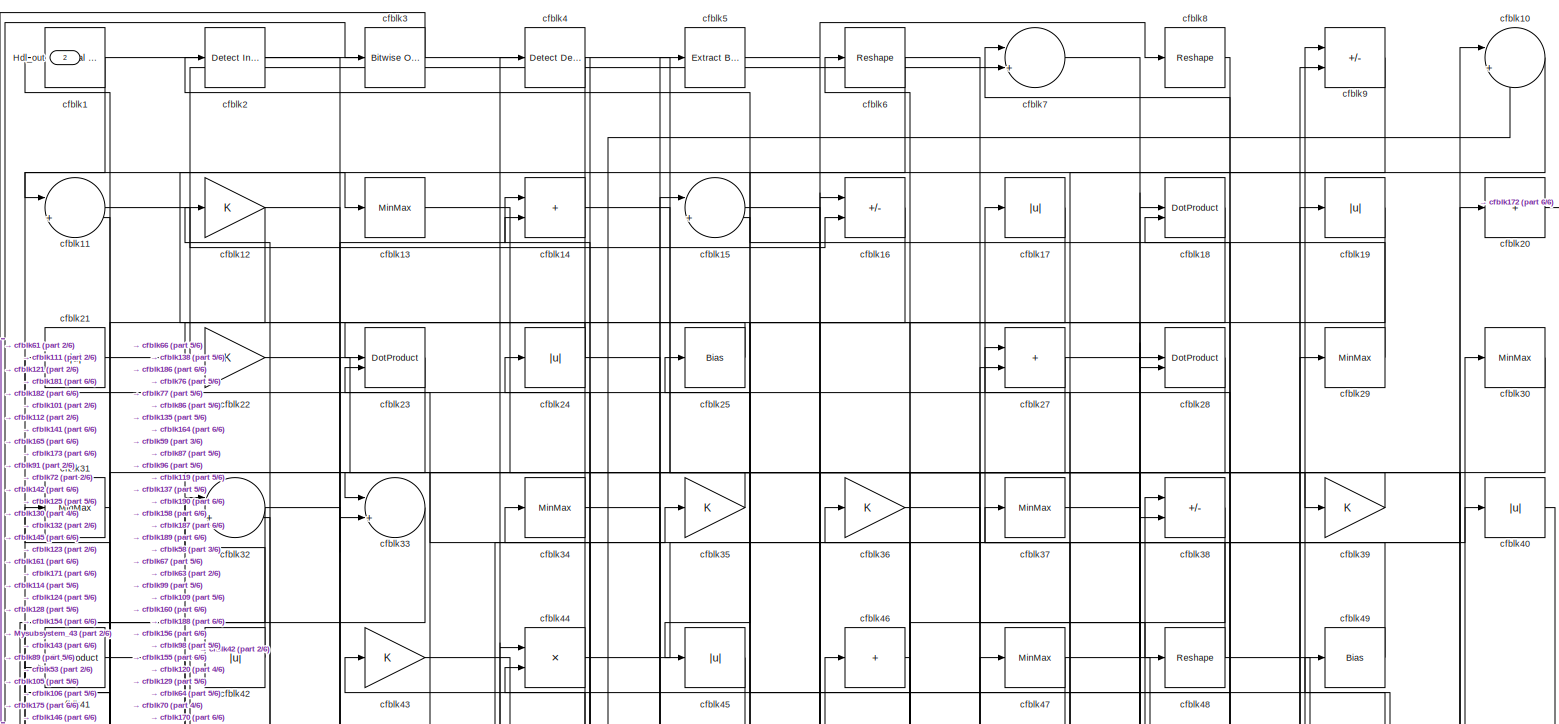
[diagram: root canvas - part 1/6, full width, top band]
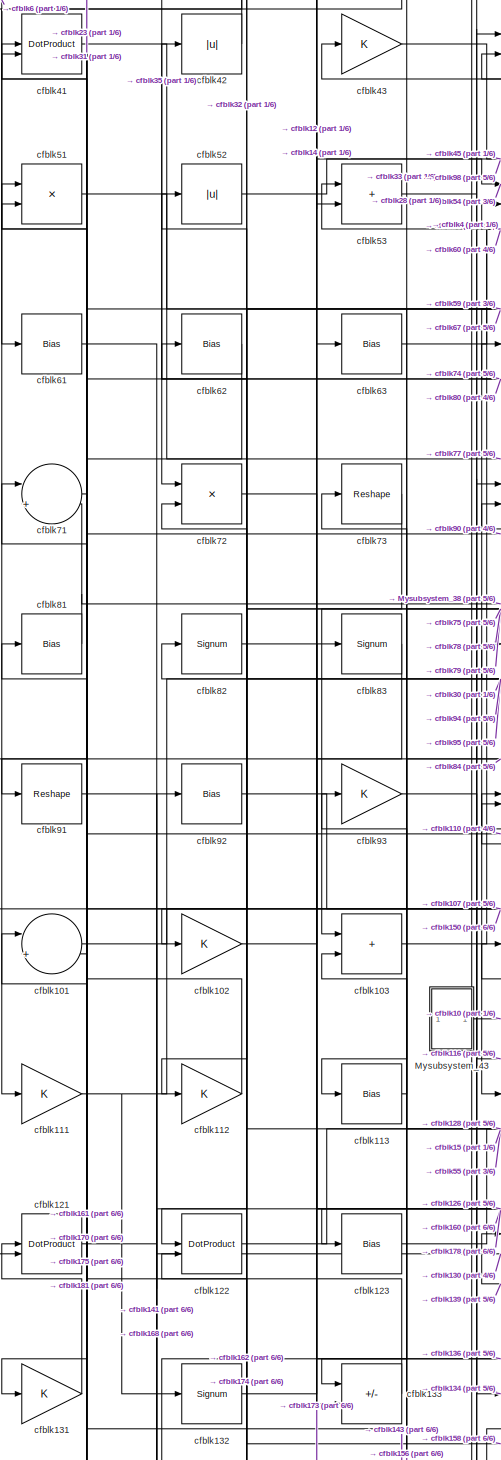
[diagram: root canvas - part 2/6, middle left region]
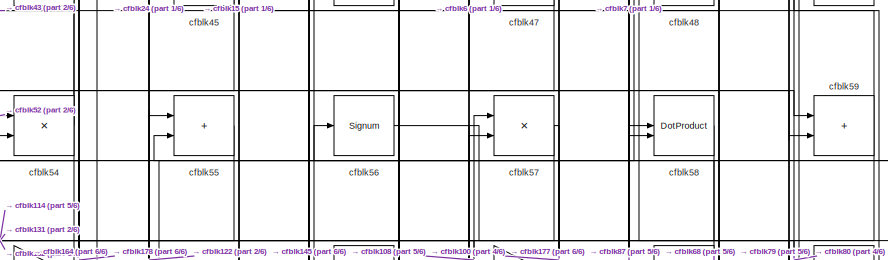
[diagram: root canvas - part 3/6, top center region]
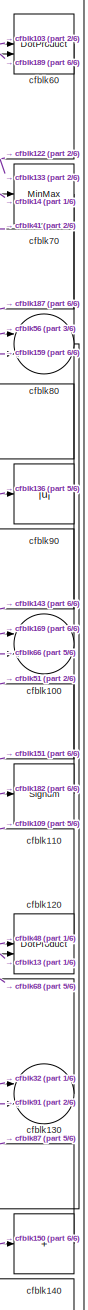
[diagram: root canvas - part 4/6, middle right region]
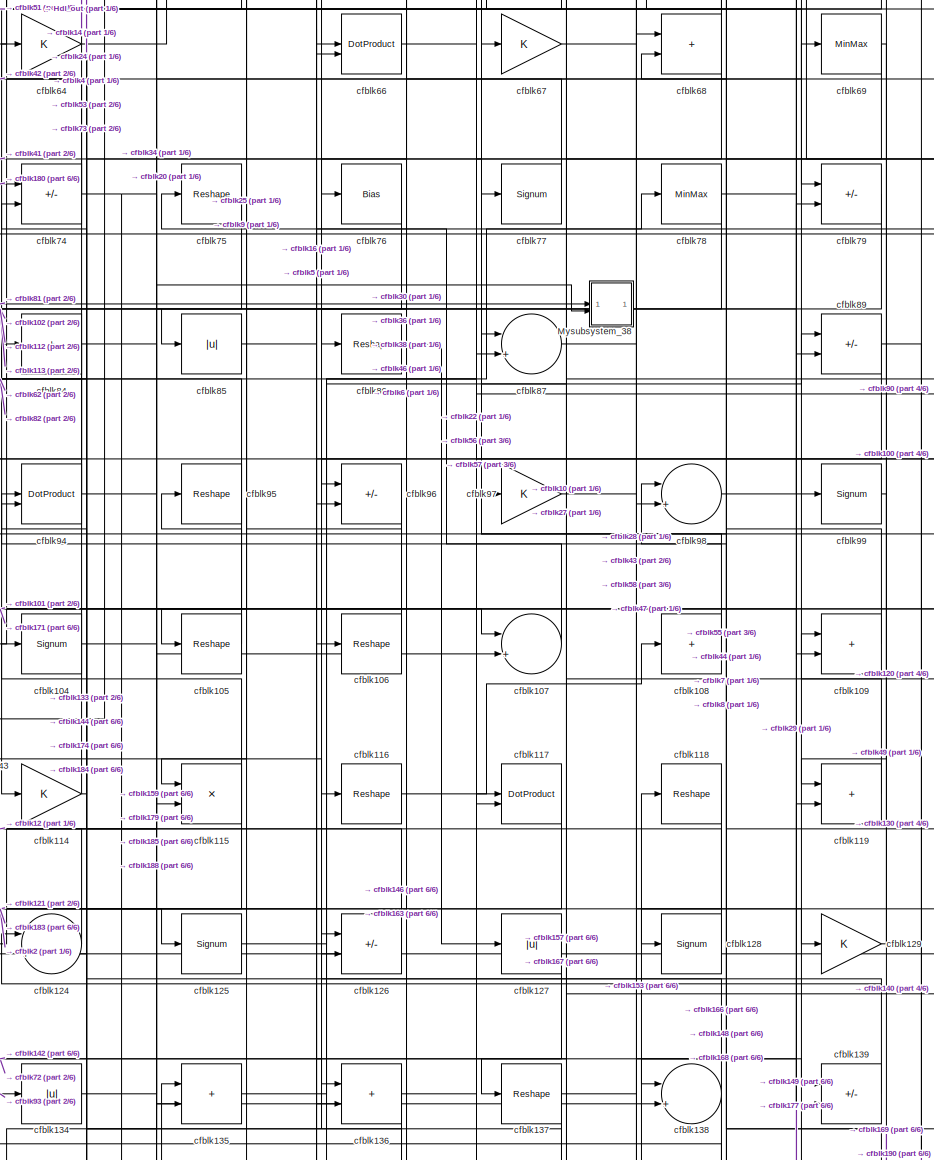
[diagram: root canvas - part 5/6, central region]
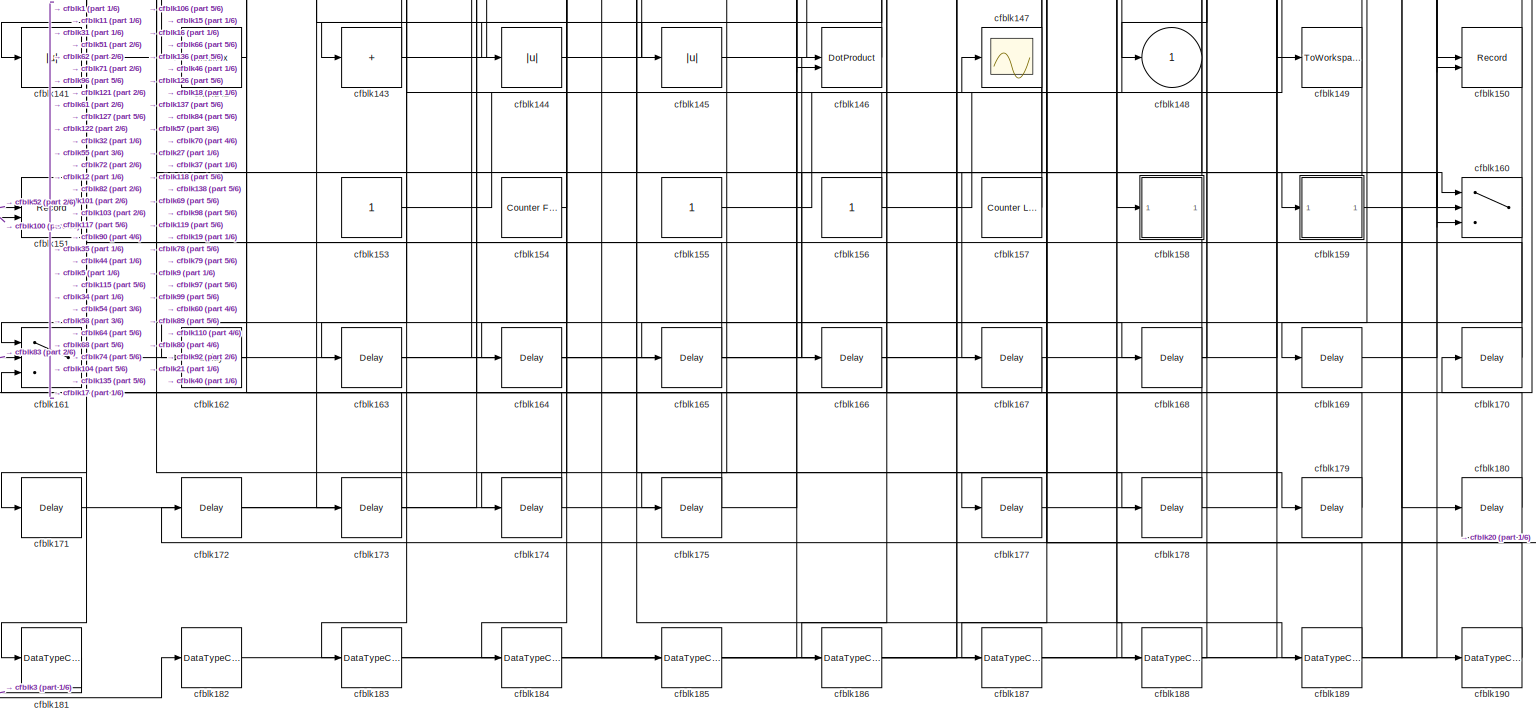
[diagram: root canvas - part 6/6, full width, bottom band]
MODEL slx_7e3a4d47d2c1
KIND model
CONFIG AbsTol = auto
CONFIG EnableMultiTasking = off
CONFIG FixedStep = auto
CONFIG MaxStep = auto
CONFIG MinStep = auto
CONFIG RelTol = 1e-3
CONFIG SampleTimeConstraint = Unconstrained
CONFIG SolverName = VariableStepAuto
CONFIG StartTime = 0.0
CONFIG StopTime = 10.0
BLOCK [Outport] Hdl_out
  OutDataTypeStr = uint8
  Port = 2
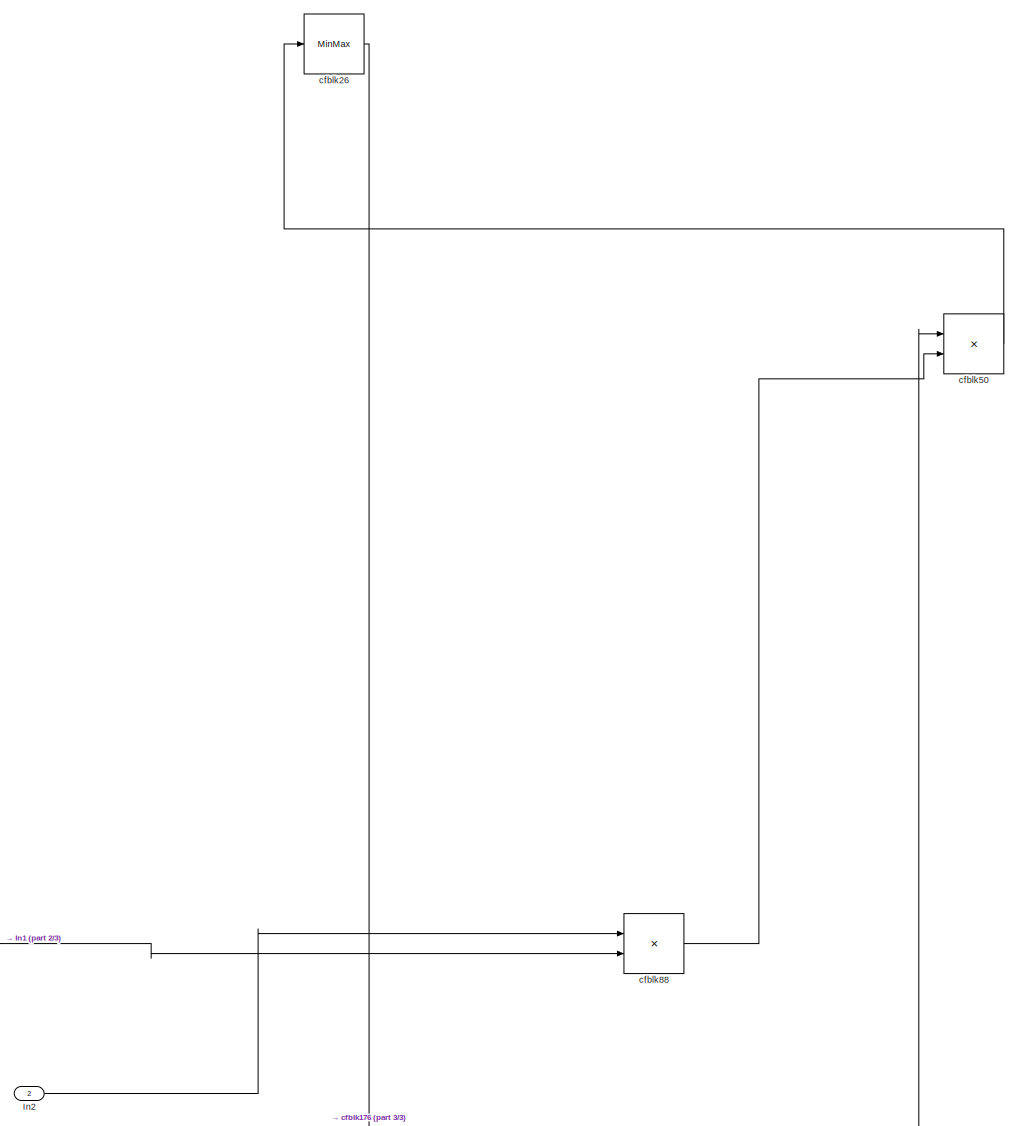
[diagram: Mysubsystem_38 - part 1/3, top center region]
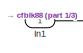
[diagram: Mysubsystem_38 - part 2/3, middle left region]
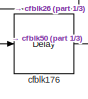
[diagram: Mysubsystem_38 - part 3/3, bottom center region]
BLOCK [SubSystem] Mysubsystem_38
  RTWFcnName = Mysubsystem_38
  RTWFcnNameOpts = User specified
  RTWFileNameOpts = Use function name
  RTWSystemCode = Reusable function
  TreatAsAtomicUnit = on
BLOCK [Inport] Mysubsystem_38/In1
BLOCK [Inport] Mysubsystem_38/In2
  Port = 2
BLOCK [Delay] Mysubsystem_38/cfblk176
  InputPortMap = u0
  SampleTime = 1
BLOCK [MinMax] Mysubsystem_38/cfblk26
BLOCK [Product] Mysubsystem_38/cfblk50
  Inputs = */
  RndMeth = Zero
  SaturateOnIntegerOverflow = on
BLOCK [Product] Mysubsystem_38/cfblk88
  Inputs = */
  RndMeth = Zero
  SaturateOnIntegerOverflow = on
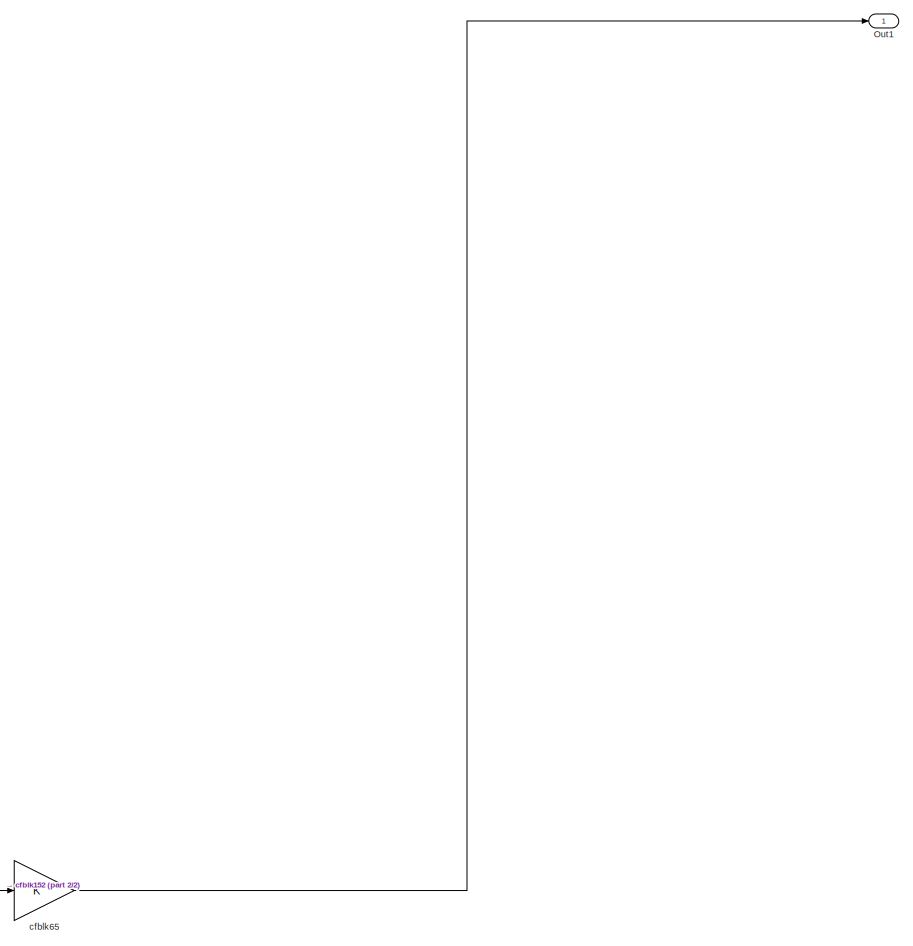
[diagram: Mysubsystem_43 - part 1/2, top right region]
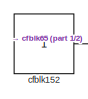
[diagram: Mysubsystem_43 - part 2/2, bottom left region]
BLOCK [SubSystem] Mysubsystem_43
  RTWFcnName = Mysubsystem_43
  RTWFcnNameOpts = User specified
  RTWFileNameOpts = Use function name
  RTWSystemCode = Reusable function
  TreatAsAtomicUnit = on
BLOCK [Outport] Mysubsystem_43/Out1
BLOCK [Constant] Mysubsystem_43/cfblk152
  SampleTime = -1
BLOCK [Gain] Mysubsystem_43/cfblk65
BLOCK [Reference] cfblk1  REF=hdlsllib/Logic and Bit
Operations/Interval Test
  SourceBlock = hdlsllib/Logic and Bit\nOperations/Interval Test
  SourceType = Interval Test
BLOCK [Sum] cfblk10
  Inputs = |++
  OutDataTypeStr = uint8
BLOCK [Sum] cfblk100
  Inputs = |++
  OutDataTypeStr = uint8
BLOCK [Sum] cfblk101
  Inputs = |++
  OutDataTypeStr = uint8
BLOCK [Gain] cfblk102
  OutDataTypeStr = uint8
BLOCK [Sum] cfblk103
  IconShape = rectangular
  OutDataTypeStr = uint8
BLOCK [Signum] cfblk104
BLOCK [Reshape] cfblk105
BLOCK [Reshape] cfblk106
BLOCK [Sum] cfblk107
  Inputs = |++
  OutDataTypeStr = uint8
BLOCK [Sum] cfblk108
  IconShape = rectangular
  Inputs = +
  OutDataTypeStr = uint8
BLOCK [Sum] cfblk109
  IconShape = rectangular
  OutDataTypeStr = uint8
BLOCK [Sum] cfblk11
  Inputs = |++
  OutDataTypeStr = uint8
BLOCK [Signum] cfblk110
BLOCK [Gain] cfblk111
  OutDataTypeStr = uint8
BLOCK [Gain] cfblk112
  OutDataTypeStr = uint8
BLOCK [Bias] cfblk113
  Bias = 0.0
  SaturateOnIntegerOverflow = off
BLOCK [Gain] cfblk114
  OutDataTypeStr = uint8
BLOCK [Product] cfblk115
  Inputs = */
  OutDataTypeStr = uint8
  RndMeth = Zero
  SaturateOnIntegerOverflow = on
BLOCK [Reshape] cfblk116
BLOCK [DotProduct] cfblk117
  OutDataTypeStr = uint8
BLOCK [Reshape] cfblk118
BLOCK [Sum] cfblk119
  IconShape = rectangular
  OutDataTypeStr = uint8
BLOCK [Gain] cfblk12
  OutDataTypeStr = uint8
BLOCK [DotProduct] cfblk120
  OutDataTypeStr = uint8
BLOCK [DotProduct] cfblk121
  OutDataTypeStr = uint8
BLOCK [DotProduct] cfblk122
  OutDataTypeStr = uint8
BLOCK [Bias] cfblk123
  Bias = 0.0
  SaturateOnIntegerOverflow = off
BLOCK [Sum] cfblk124
  Inputs = |++
  OutDataTypeStr = uint8
BLOCK [Signum] cfblk125
BLOCK [Sum] cfblk126
  IconShape = rectangular
  Inputs = +-
  OutDataTypeStr = uint8
BLOCK [Abs] cfblk127
  OutDataTypeStr = uint8
  SaturateOnIntegerOverflow = off
BLOCK [Signum] cfblk128
BLOCK [Gain] cfblk129
  OutDataTypeStr = uint8
BLOCK [MinMax] cfblk13
  OutDataTypeStr = uint8
BLOCK [Sum] cfblk130
  Inputs = |++
  OutDataTypeStr = uint8
BLOCK [Gain] cfblk131
  OutDataTypeStr = uint8
BLOCK [Signum] cfblk132
BLOCK [Sum] cfblk133
  IconShape = rectangular
  Inputs = +-
  OutDataTypeStr = uint8
BLOCK [Abs] cfblk134
  OutDataTypeStr = uint8
  SaturateOnIntegerOverflow = off
BLOCK [Sum] cfblk135
  IconShape = rectangular
  OutDataTypeStr = uint8
BLOCK [Sum] cfblk136
  IconShape = rectangular
  OutDataTypeStr = uint8
BLOCK [Reshape] cfblk137
BLOCK [Sum] cfblk138
  Inputs = |++
  OutDataTypeStr = uint8
BLOCK [Sum] cfblk139
  IconShape = rectangular
  Inputs = +-
  OutDataTypeStr = uint8
BLOCK [Sum] cfblk14
  IconShape = rectangular
  OutDataTypeStr = uint8
BLOCK [Sum] cfblk140
  IconShape = rectangular
  Inputs = +
  OutDataTypeStr = uint8
BLOCK [Abs] cfblk141
  OutDataTypeStr = uint8
  SaturateOnIntegerOverflow = off
BLOCK [MinMax] cfblk142
  OutDataTypeStr = uint8
BLOCK [Sum] cfblk143
  IconShape = rectangular
  Inputs = +
  OutDataTypeStr = uint8
BLOCK [Abs] cfblk144
  OutDataTypeStr = uint8
  SaturateOnIntegerOverflow = off
BLOCK [Abs] cfblk145
  OutDataTypeStr = uint8
  SaturateOnIntegerOverflow = off
BLOCK [DotProduct] cfblk146
  OutDataTypeStr = uint8
BLOCK [Scope] cfblk147
  Floating = off
  NumInputPorts = 1
  ScopeSpecificationString = Simulink.scopes.TimeScopeBlockCfg('CurrentConfiguration', extmgr.ConfigurationSet(extmgr.Configuration('Core','General UI',true),extmgr.Configuration('Core','Source UI',true),extmgr.Configuration('Sources','WiredSimulink',true,'DataLoggingVariableName','ScopeData2','DataLoggingSaveFormat','Array','DataLoggingLimitDataPoints',true,'DataLoggingDecimation','1'),extmgr.Configuration('Visuals','Time Do...<+868ch>
BLOCK [Outport] cfblk148
  OutDataTypeStr = uint8
  VectorParamsAs1DForOutWhenUnconnected = off
BLOCK [ToWorkspace] cfblk149
  MaxDataPoints = inf
  SampleTime = -1
  SaveFormat = Timeseries
  VariableName = simout
BLOCK [Sum] cfblk15
  Inputs = |++
  OutDataTypeStr = uint8
BLOCK [Record] cfblk150
  CompatibilityTag = XY
  FileSettingsInternal = {"entries":[{"content":{"excelSettings":{"content":{},"type":"Streamout.ExcelSettings"}},"type":"Streamout.FileSettingStorage","uuid":""}],"packageUris":["http:\/\/schema.mathworks.com\/mf0\/streamout_blocks\/R2020a"],"version":"1.0"}
  Layout = [1 1]
  SignalsInternal = {"entries":[{"content":{"signals":[{"content":{"blockPath":[],"dimensions":[1],"domain":"","lineColor":"#a2142f","plots":[1],"port":1,"signalID":37299,"signalName":"cfblk92"},"type":"RecordBlkView.Signal","uuid":""},{"content":{"blockPath":[],"dimensions":[1],"domain":"","lineColor":"#139fff","plots":[1],"port":2,"signalID":37302,"signalName":"cfblk80"},"type":"RecordBlkView.Signal","uuid":""}]},"...<+142ch>
  VisualizationBindings = {"xyplotplugin":{"info":[{"series":[{"bindingParametersList":[{"parameter":"X-Axis","signalID":37299,"signalName":"cfblk92"},{"parameter":"Y-Axis","signalID":37302,"signalName":"cfblk80"}],"seriesID":8250}],"subplotID":1}]}}
  st = -1
BLOCK [Record] cfblk151
  CompatibilityTag = XY
  FileSettingsInternal = {"entries":[{"content":{"excelSettings":{"content":{},"type":"Streamout.ExcelSettings"}},"type":"Streamout.FileSettingStorage","uuid":""}],"packageUris":["http:\/\/schema.mathworks.com\/mf0\/streamout_blocks\/R2020a"],"version":"1.0"}
  Layout = [1 1]
  SignalsInternal = {"entries":[{"content":{"signals":[{"content":{"blockPath":[],"dimensions":[1],"domain":"","lineColor":"#a2142f","plots":[1],"port":1,"signalID":37291,"signalName":"cfblk158"},"type":"RecordBlkView.Signal","uuid":""},{"content":{"blockPath":[],"dimensions":[1],"domain":"","lineColor":"#139fff","plots":[1],"port":2,"signalID":37294,"signalName":"cfblk100"},"type":"RecordBlkView.Signal","uuid":""}]}...<+144ch>
  VisualizationBindings = {"xyplotplugin":{"info":[{"series":[{"bindingParametersList":[{"parameter":"X-Axis","signalID":37291,"signalName":"cfblk158"},{"parameter":"Y-Axis","signalID":37294,"signalName":"cfblk100"}],"seriesID":43053}],"subplotID":1}]}}
  st = -1
BLOCK [Constant] cfblk153
  OutDataTypeStr = uint8
  SampleTime = -1
BLOCK [Reference] cfblk154  REF=hdlsllib/Sources/Counter
Free-Running
  SourceBlock = hdlsllib/Sources/Counter\nFree-Running
  SourceType = Counter Free-Running
BLOCK [Constant] cfblk155
  OutDataTypeStr = uint8
  SampleTime = -1
BLOCK [Constant] cfblk156
  OutDataTypeStr = uint8
  SampleTime = -1
BLOCK [Reference] cfblk157  REF=hdlsllib/Sources/Counter
Limited
  SourceBlock = hdlsllib/Sources/Counter\nLimited
  SourceType = Counter Limited
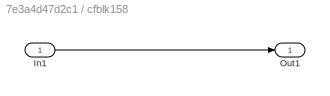
BLOCK [SubSystem] cfblk158
  LibrarySourceBlock = hdlsllib/Ports &\nSubsystems/Subsystem
BLOCK [Inport] cfblk158/In1
BLOCK [Outport] cfblk158/Out1
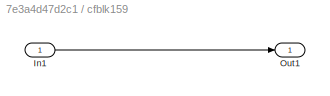
BLOCK [SubSystem] cfblk159
  LibrarySourceBlock = hdlsllib/Ports &\nSubsystems/Subsystem
BLOCK [Inport] cfblk159/In1
BLOCK [Outport] cfblk159/Out1
BLOCK [Sum] cfblk16
  IconShape = rectangular
  Inputs = +-
  OutDataTypeStr = uint8
BLOCK [Switch] cfblk160
  InputSameDT = off
  OutDataTypeStr = uint8
  SaturateOnIntegerOverflow = off
BLOCK [Switch] cfblk161
  InputSameDT = off
  OutDataTypeStr = uint8
  SaturateOnIntegerOverflow = off
BLOCK [Delay] cfblk162
  InputPortMap = u0
  SampleTime = 1
BLOCK [Delay] cfblk163
  InputPortMap = u0
  SampleTime = 1
BLOCK [Delay] cfblk164
  InputPortMap = u0
  SampleTime = 1
BLOCK [Delay] cfblk165
  InputPortMap = u0
  SampleTime = 1
BLOCK [Delay] cfblk166
  InputPortMap = u0
  SampleTime = 1
BLOCK [Delay] cfblk167
  InputPortMap = u0
  SampleTime = 1
BLOCK [Delay] cfblk168
  InputPortMap = u0
  SampleTime = 1
BLOCK [Delay] cfblk169
  InputPortMap = u0
  SampleTime = 1
BLOCK [Abs] cfblk17
  OutDataTypeStr = uint8
  SaturateOnIntegerOverflow = off
BLOCK [Delay] cfblk170
  InputPortMap = u0
  SampleTime = 1
BLOCK [Delay] cfblk171
  InputPortMap = u0
  SampleTime = 1
BLOCK [Delay] cfblk172
  InputPortMap = u0
  SampleTime = 1
BLOCK [Delay] cfblk173
  InputPortMap = u0
  SampleTime = 1
BLOCK [Delay] cfblk174
  InputPortMap = u0
  SampleTime = 1
BLOCK [Delay] cfblk175
  InputPortMap = u0
  SampleTime = 1
BLOCK [Delay] cfblk177
  InputPortMap = u0
  SampleTime = 1
BLOCK [Delay] cfblk178
  InputPortMap = u0
  SampleTime = 1
BLOCK [Delay] cfblk179
  InputPortMap = u0
  SampleTime = 1
BLOCK [DotProduct] cfblk18
  OutDataTypeStr = uint8
BLOCK [Delay] cfblk180
  InputPortMap = u0
  SampleTime = 1
BLOCK [DataTypeConversion] cfblk181
  OutDataTypeStr = uint8
  RndMeth = Floor
  SaturateOnIntegerOverflow = off
BLOCK [DataTypeConversion] cfblk182
  OutDataTypeStr = uint8
  RndMeth = Floor
  SaturateOnIntegerOverflow = off
BLOCK [DataTypeConversion] cfblk183
  OutDataTypeStr = uint8
  RndMeth = Floor
  SaturateOnIntegerOverflow = off
BLOCK [DataTypeConversion] cfblk184
  OutDataTypeStr = uint8
  RndMeth = Floor
  SaturateOnIntegerOverflow = off
BLOCK [DataTypeConversion] cfblk185
  OutDataTypeStr = uint8
  RndMeth = Floor
  SaturateOnIntegerOverflow = off
BLOCK [DataTypeConversion] cfblk186
  OutDataTypeStr = uint8
  RndMeth = Floor
  SaturateOnIntegerOverflow = off
BLOCK [DataTypeConversion] cfblk187
  OutDataTypeStr = uint8
  RndMeth = Floor
  SaturateOnIntegerOverflow = off
BLOCK [DataTypeConversion] cfblk188
  OutDataTypeStr = uint8
  RndMeth = Floor
  SaturateOnIntegerOverflow = off
BLOCK [DataTypeConversion] cfblk189
  OutDataTypeStr = uint8
  RndMeth = Floor
  SaturateOnIntegerOverflow = off
BLOCK [Abs] cfblk19
  OutDataTypeStr = uint8
  SaturateOnIntegerOverflow = off
BLOCK [DataTypeConversion] cfblk190
  OutDataTypeStr = uint8
  RndMeth = Floor
  SaturateOnIntegerOverflow = off
BLOCK [Reference] cfblk2  REF=simulink/Logic and Bit
Operations/Detect
Increase
  LibrarySourceBlock = hdlsllib/Logic and Bit\nOperations/Detect\nIncrease
  SourceBlock = simulink/Logic and Bit\nOperations/Detect\nIncrease
  SourceType = Detect Increase
BLOCK [Sum] cfblk20
  IconShape = rectangular
  Inputs = +
  OutDataTypeStr = uint8
BLOCK [Abs] cfblk21
  OutDataTypeStr = uint8
  SaturateOnIntegerOverflow = off
BLOCK [Gain] cfblk22
  OutDataTypeStr = uint8
BLOCK [DotProduct] cfblk23
  OutDataTypeStr = uint8
BLOCK [Abs] cfblk24
  OutDataTypeStr = uint8
  SaturateOnIntegerOverflow = off
BLOCK [Bias] cfblk25
  Bias = 0.0
  SaturateOnIntegerOverflow = off
BLOCK [Sum] cfblk27
  IconShape = rectangular
  OutDataTypeStr = uint8
BLOCK [DotProduct] cfblk28
  OutDataTypeStr = uint8
BLOCK [MinMax] cfblk29
  OutDataTypeStr = uint8
BLOCK [Reference] cfblk3  REF=simulink/Logic and Bit
Operations/Bitwise
Operator
  LibrarySourceBlock = hdlsllib/Logic and Bit\nOperations/Bitwise\nOperator
  SourceBlock = simulink/Logic and Bit\nOperations/Bitwise\nOperator
  SourceType = Bitwise Operator
BLOCK [MinMax] cfblk30
  OutDataTypeStr = uint8
BLOCK [MinMax] cfblk31
  OutDataTypeStr = uint8
BLOCK [Sum] cfblk32
  Inputs = |++
  OutDataTypeStr = uint8
BLOCK [Sum] cfblk33
  Inputs = |++
  OutDataTypeStr = uint8
BLOCK [MinMax] cfblk34
  OutDataTypeStr = uint8
BLOCK [Gain] cfblk35
  OutDataTypeStr = uint8
BLOCK [Gain] cfblk36
  OutDataTypeStr = uint8
BLOCK [MinMax] cfblk37
  OutDataTypeStr = uint8
BLOCK [Sum] cfblk38
  IconShape = rectangular
  Inputs = +-
  OutDataTypeStr = uint8
BLOCK [Gain] cfblk39
  OutDataTypeStr = uint8
BLOCK [Reference] cfblk4  REF=simulink/Logic and Bit
Operations/Detect
Decrease
  LibrarySourceBlock = hdlsllib/Logic and Bit\nOperations/Detect\nDecrease
  SourceBlock = simulink/Logic and Bit\nOperations/Detect\nDecrease
  SourceType = Detect Decrease
BLOCK [Abs] cfblk40
  OutDataTypeStr = uint8
  SaturateOnIntegerOverflow = off
BLOCK [DotProduct] cfblk41
  OutDataTypeStr = uint8
BLOCK [Abs] cfblk42
  OutDataTypeStr = uint8
  SaturateOnIntegerOverflow = off
BLOCK [Gain] cfblk43
  OutDataTypeStr = uint8
BLOCK [Product] cfblk44
  Inputs = */
  OutDataTypeStr = uint8
  RndMeth = Zero
  SaturateOnIntegerOverflow = on
BLOCK [Abs] cfblk45
  OutDataTypeStr = uint8
  SaturateOnIntegerOverflow = off
BLOCK [Sum] cfblk46
  IconShape = rectangular
  Inputs = +
  OutDataTypeStr = uint8
BLOCK [MinMax] cfblk47
  OutDataTypeStr = uint8
BLOCK [Reshape] cfblk48
BLOCK [Bias] cfblk49
  Bias = 0.0
  SaturateOnIntegerOverflow = off
BLOCK [Reference] cfblk5  REF=simulink/Logic and Bit
Operations/Extract Bits
  LibrarySourceBlock = hdlsllib/Logic and Bit\nOperations/Extract Bits
  SourceBlock = simulink/Logic and Bit\nOperations/Extract Bits
  SourceType = Extract Bits
BLOCK [Product] cfblk51
  Inputs = */
  OutDataTypeStr = uint8
  RndMeth = Zero
  SaturateOnIntegerOverflow = on
BLOCK [Abs] cfblk52
  OutDataTypeStr = uint8
  SaturateOnIntegerOverflow = off
BLOCK [Sum] cfblk53
  IconShape = rectangular
  OutDataTypeStr = uint8
BLOCK [Product] cfblk54
  Inputs = */
  OutDataTypeStr = uint8
  RndMeth = Zero
  SaturateOnIntegerOverflow = on
BLOCK [Sum] cfblk55
  IconShape = rectangular
  OutDataTypeStr = uint8
BLOCK [Signum] cfblk56
BLOCK [Product] cfblk57
  Inputs = */
  OutDataTypeStr = uint8
  RndMeth = Zero
  SaturateOnIntegerOverflow = on
BLOCK [DotProduct] cfblk58
  OutDataTypeStr = uint8
BLOCK [Sum] cfblk59
  IconShape = rectangular
  OutDataTypeStr = uint8
BLOCK [Reshape] cfblk6
BLOCK [DotProduct] cfblk60
  OutDataTypeStr = uint8
BLOCK [Bias] cfblk61
  Bias = 0.0
  SaturateOnIntegerOverflow = off
BLOCK [Bias] cfblk62
  Bias = 0.0
  SaturateOnIntegerOverflow = off
BLOCK [Bias] cfblk63
  Bias = 0.0
  SaturateOnIntegerOverflow = off
BLOCK [Gain] cfblk64
  OutDataTypeStr = uint8
BLOCK [DotProduct] cfblk66
  OutDataTypeStr = uint8
BLOCK [Gain] cfblk67
  OutDataTypeStr = uint8
BLOCK [Sum] cfblk68
  IconShape = rectangular
  OutDataTypeStr = uint8
BLOCK [MinMax] cfblk69
  OutDataTypeStr = uint8
BLOCK [Sum] cfblk7
  Inputs = |++
  OutDataTypeStr = uint8
BLOCK [MinMax] cfblk70
  OutDataTypeStr = uint8
BLOCK [Sum] cfblk71
  Inputs = |++
  OutDataTypeStr = uint8
BLOCK [Product] cfblk72
  Inputs = */
  OutDataTypeStr = uint8
  RndMeth = Zero
  SaturateOnIntegerOverflow = on
BLOCK [Reshape] cfblk73
BLOCK [Sum] cfblk74
  IconShape = rectangular
  Inputs = +-
  OutDataTypeStr = uint8
BLOCK [Reshape] cfblk75
BLOCK [Bias] cfblk76
  Bias = 0.0
  SaturateOnIntegerOverflow = off
BLOCK [Signum] cfblk77
BLOCK [MinMax] cfblk78
  OutDataTypeStr = uint8
BLOCK [Sum] cfblk79
  IconShape = rectangular
  Inputs = +-
  OutDataTypeStr = uint8
BLOCK [Reshape] cfblk8
BLOCK [Sum] cfblk80
  Inputs = |++
  OutDataTypeStr = uint8
BLOCK [Bias] cfblk81
  Bias = 0.0
  SaturateOnIntegerOverflow = off
BLOCK [Signum] cfblk82
BLOCK [Signum] cfblk83
BLOCK [Sum] cfblk84
  IconShape = rectangular
  Inputs = +
  OutDataTypeStr = uint8
BLOCK [Abs] cfblk85
  OutDataTypeStr = uint8
  SaturateOnIntegerOverflow = off
BLOCK [Reshape] cfblk86
BLOCK [Sum] cfblk87
  Inputs = |++
  OutDataTypeStr = uint8
BLOCK [Sum] cfblk89
  IconShape = rectangular
  Inputs = +-
  OutDataTypeStr = uint8
BLOCK [Sum] cfblk9
  IconShape = rectangular
  Inputs = +-
  OutDataTypeStr = uint8
BLOCK [Abs] cfblk90
  OutDataTypeStr = uint8
  SaturateOnIntegerOverflow = off
BLOCK [Reshape] cfblk91
BLOCK [Bias] cfblk92
  Bias = 0.0
  SaturateOnIntegerOverflow = off
BLOCK [Gain] cfblk93
  OutDataTypeStr = uint8
BLOCK [DotProduct] cfblk94
  OutDataTypeStr = uint8
BLOCK [Reshape] cfblk95
BLOCK [Sum] cfblk96
  IconShape = rectangular
  Inputs = +-
  OutDataTypeStr = uint8
BLOCK [Gain] cfblk97
  OutDataTypeStr = uint8
BLOCK [Sum] cfblk98
  Inputs = |++
  OutDataTypeStr = uint8
BLOCK [Signum] cfblk99
LINE Mysubsystem_38/In1:1 -> Mysubsystem_38/cfblk88:2
LINE Mysubsystem_38/In2:1 -> Mysubsystem_38/cfblk88:1
LINE Mysubsystem_38/cfblk176:1 -> Mysubsystem_38/cfblk50:1
LINE Mysubsystem_38/cfblk26:1 -> Mysubsystem_38/cfblk176:1
LINE Mysubsystem_38/cfblk50:1 -> Mysubsystem_38/cfblk26:1
LINE Mysubsystem_38/cfblk88:1 -> Mysubsystem_38/cfblk50:2
LINE Mysubsystem_43/cfblk152:1 -> Mysubsystem_43/cfblk65:1
LINE Mysubsystem_43/cfblk65:1 -> Mysubsystem_43/Out1:1
LINE Mysubsystem_43:1 -> cfblk10:2
NET cfblk100:1 -> cfblk151:2, cfblk56:1
NET cfblk101:1 -> cfblk107:1, cfblk160:3
LINE cfblk102:1 -> cfblk83:1
LINE cfblk103:1 -> cfblk60:1
NET cfblk104:1 -> cfblk107:2, cfblk179:1
LINE cfblk105:1 -> cfblk95:1
LINE cfblk106:1 -> cfblk25:1
LINE cfblk107:1 -> cfblk75:1
NET cfblk108:1 -> cfblk57:1, cfblk94:1
NET cfblk109:1 -> cfblk44:2, cfblk7:1
LINE cfblk10:1 -> cfblk137:1
LINE cfblk110:1 -> cfblk51:1
NET cfblk111:1 -> cfblk132:1, cfblk30:1
LINE cfblk112:1 -> cfblk31:1
LINE cfblk113:1 -> cfblk93:1
NET cfblk114:1 -> Hdl_out:1, cfblk14:1
NET cfblk115:1 -> cfblk135:2, cfblk174:1, cfblk94:2
LINE cfblk116:1 -> cfblk108:1
LINE cfblk117:1 -> cfblk183:1
LINE cfblk118:1 -> cfblk128:1
LINE cfblk119:1 -> cfblk27:1
NET cfblk11:1 -> cfblk13:1, cfblk16:2, cfblk28:2
LINE cfblk120:1 -> cfblk109:1
NET cfblk121:1 -> cfblk126:1, cfblk160:2, cfblk178:1
LINE cfblk122:1 -> cfblk55:1
LINE cfblk123:1 -> cfblk15:1
LINE cfblk124:1 -> cfblk12:1
LINE cfblk125:1 -> cfblk89:1
LINE cfblk126:1 -> cfblk104:1
LINE cfblk127:1 -> cfblk142:1
NET cfblk128:1 -> cfblk24:1, cfblk73:1
LINE cfblk129:1 -> cfblk49:1
NET cfblk12:1 -> cfblk145:1, cfblk91:1
LINE cfblk130:1 -> cfblk68:2
LINE cfblk131:1 -> cfblk121:1
NET cfblk132:1 -> cfblk14:2, cfblk63:1
LINE cfblk133:1 -> cfblk81:1
LINE cfblk134:1 -> cfblk69:1
LINE cfblk135:1 -> cfblk47:1
NET cfblk136:1 -> cfblk163:1, cfblk90:1
NET cfblk137:1 -> cfblk139:2, cfblk167:1
NET cfblk138:1 -> cfblk166:1, cfblk36:1
NET cfblk139:1 -> cfblk124:1, cfblk53:1
LINE cfblk13:1 -> cfblk120:2
LINE cfblk140:1 -> cfblk87:1
LINE cfblk141:1 -> cfblk92:1
LINE cfblk142:1 -> cfblk32:2
NET cfblk143:1 -> cfblk101:1, cfblk5:1
NET cfblk144:1 -> cfblk135:1, cfblk64:1
LINE cfblk145:1 -> cfblk57:2
NET cfblk146:1 -> cfblk46:1, cfblk74:2
LINE cfblk14:1 -> cfblk70:1
LINE cfblk153:1 -> cfblk118:1
LINE cfblk154:1 -> cfblk34:1
LINE cfblk155:1 -> cfblk9:1
NET cfblk156:1 -> cfblk103:2, cfblk19:1
LINE cfblk157:1 -> cfblk84:1
LINE cfblk158/In1:1 -> cfblk158/Out1:1
NET cfblk158:1 -> cfblk151:1, cfblk52:1
LINE cfblk159/In1:1 -> cfblk159/Out1:1
NET cfblk159:1 -> cfblk180:1, cfblk80:2, cfblk97:1
LINE cfblk15:1 -> cfblk160:1
NET cfblk160:1 -> cfblk165:1, cfblk21:1
NET cfblk161:1 -> cfblk146:1, cfblk35:1
LINE cfblk162:1 -> cfblk122:2
LINE cfblk163:1 -> cfblk66:1
LINE cfblk164:1 -> cfblk27:2
LINE cfblk165:1 -> cfblk11:2
LINE cfblk166:1 -> cfblk79:2
LINE cfblk167:1 -> cfblk161:3
LINE cfblk168:1 -> cfblk98:1
LINE cfblk169:1 -> cfblk100:1
LINE cfblk16:1 -> cfblk66:2
LINE cfblk170:1 -> cfblk71:1
LINE cfblk171:1 -> cfblk44:1
LINE cfblk172:1 -> cfblk16:1
LINE cfblk173:1 -> cfblk1:1
LINE cfblk174:1 -> cfblk72:2
LINE cfblk175:1 -> cfblk51:2
LINE cfblk177:1 -> cfblk119:2
LINE cfblk178:1 -> cfblk54:2
LINE cfblk179:1 -> cfblk126:2
LINE cfblk17:1 -> cfblk175:1
LINE cfblk180:1 -> cfblk74:1
LINE cfblk181:1 -> cfblk3:1
LINE cfblk182:1 -> cfblk110:1
LINE cfblk183:1 -> cfblk106:1
LINE cfblk184:1 -> cfblk117:1
LINE cfblk185:1 -> cfblk117:2
LINE cfblk186:1 -> cfblk9:2
LINE cfblk187:1 -> cfblk18:1
LINE cfblk188:1 -> cfblk18:2
NET cfblk189:1 -> cfblk147:1, cfblk60:2
LINE cfblk18:1 -> cfblk186:1
LINE cfblk190:1 -> cfblk37:1
LINE cfblk19:1 -> cfblk45:1
LINE cfblk1:1 -> cfblk11:1
LINE cfblk20:1 -> cfblk172:1
LINE cfblk21:1 -> cfblk7:2
NET cfblk22:1 -> cfblk33:2, cfblk87:2
LINE cfblk23:1 -> cfblk101:2
NET cfblk24:1 -> cfblk138:2, cfblk23:1, cfblk59:1
LINE cfblk25:1 -> cfblk22:1
NET cfblk27:1 -> cfblk146:2, cfblk158:1
LINE cfblk28:1 -> cfblk123:1
LINE cfblk29:1 -> cfblk2:1
LINE cfblk2:1 -> cfblk125:1
LINE cfblk30:1 -> cfblk96:1
LINE cfblk31:1 -> cfblk141:1
NET cfblk32:1 -> cfblk121:2, cfblk130:1
LINE cfblk33:1 -> cfblk61:1
LINE cfblk34:1 -> cfblk89:2
LINE cfblk35:1 -> cfblk72:1
LINE cfblk36:1 -> cfblk48:1
LINE cfblk37:1 -> cfblk189:1
LINE cfblk38:1 -> cfblk76:1
LINE cfblk39:1 -> cfblk33:1
LINE cfblk3:1 -> cfblk182:1
LINE cfblk40:1 -> cfblk170:1
LINE cfblk41:1 -> cfblk77:1
LINE cfblk42:1 -> cfblk32:1
LINE cfblk43:1 -> cfblk98:2
LINE cfblk44:1 -> cfblk10:1
LINE cfblk45:1 -> cfblk53:2
LINE cfblk46:1 -> cfblk86:1
NET cfblk47:1 -> cfblk40:1, cfblk96:2, cfblk99:1
NET cfblk48:1 -> cfblk120:1, cfblk23:2
LINE cfblk49:1 -> cfblk17:1
NET cfblk4:1 -> cfblk124:2, cfblk39:1
LINE cfblk51:1 -> cfblk67:1
LINE cfblk52:1 -> cfblk54:1
NET cfblk53:1 -> cfblk116:1, cfblk4:1
LINE cfblk54:1 -> cfblk43:1
LINE cfblk55:1 -> cfblk162:1
NET cfblk56:1 -> cfblk79:1, cfblk80:1
NET cfblk57:1 -> cfblk114:1, cfblk177:1
LINE cfblk58:1 -> cfblk164:1
NET cfblk59:1 -> cfblk131:1, cfblk15:2
NET cfblk5:1 -> cfblk109:2, cfblk8:1
NET cfblk60:1 -> cfblk122:1, cfblk133:1
LINE cfblk61:1 -> cfblk168:1
LINE cfblk62:1 -> cfblk181:1
LINE cfblk63:1 -> cfblk38:1
LINE cfblk64:1 -> cfblk20:1
LINE cfblk66:1 -> cfblk100:2
NET cfblk67:1 -> cfblk129:1, cfblk28:1
NET cfblk68:1 -> cfblk144:1, cfblk55:2
NET cfblk69:1 -> cfblk119:1, cfblk148:1
NET cfblk6:1 -> cfblk111:1, cfblk38:2, cfblk59:2
LINE cfblk70:1 -> cfblk187:1
LINE cfblk71:1 -> cfblk161:1
LINE cfblk72:1 -> cfblk136:1
LINE cfblk73:1 -> cfblk103:1
NET cfblk74:1 -> cfblk159:1, cfblk185:1, cfblk42:1
LINE cfblk75:1 -> cfblk112:1
LINE cfblk76:1 -> cfblk115:1
LINE cfblk77:1 -> cfblk6:1
NET cfblk78:1 -> cfblk102:1, cfblk149:1
NET cfblk79:1 -> cfblk113:1, cfblk85:1
LINE cfblk7:1 -> cfblk58:2
NET cfblk80:1 -> cfblk140:1, cfblk150:2, cfblk41:1
NET cfblk81:1 -> Mysubsystem_38:1, cfblk71:2
LINE cfblk82:1 -> cfblk173:1
LINE cfblk83:1 -> cfblk161:2
NET cfblk84:1 -> cfblk133:2, cfblk184:1, cfblk188:1
NET cfblk85:1 -> cfblk139:1, cfblk78:1
LINE cfblk86:1 -> cfblk127:1
LINE cfblk87:1 -> cfblk58:1
NET cfblk89:1 -> cfblk136:2, cfblk190:1
LINE cfblk8:1 -> cfblk138:1
NET cfblk90:1 -> cfblk143:1, cfblk41:2
LINE cfblk91:1 -> cfblk130:2
LINE cfblk92:1 -> cfblk150:1
LINE cfblk93:1 -> cfblk134:1
NET cfblk94:1 -> Mysubsystem_38:2, cfblk62:1
NET cfblk95:1 -> cfblk115:2, cfblk82:1
LINE cfblk96:1 -> cfblk171:1
LINE cfblk97:1 -> cfblk68:1
LINE cfblk98:1 -> cfblk29:1
LINE cfblk99:1 -> cfblk169:1
LINE cfblk9:1 -> cfblk105:1
note: NET lines group one-source signal fan-out (src -> all destinations, sorted); 1:1 wires keep LINE
